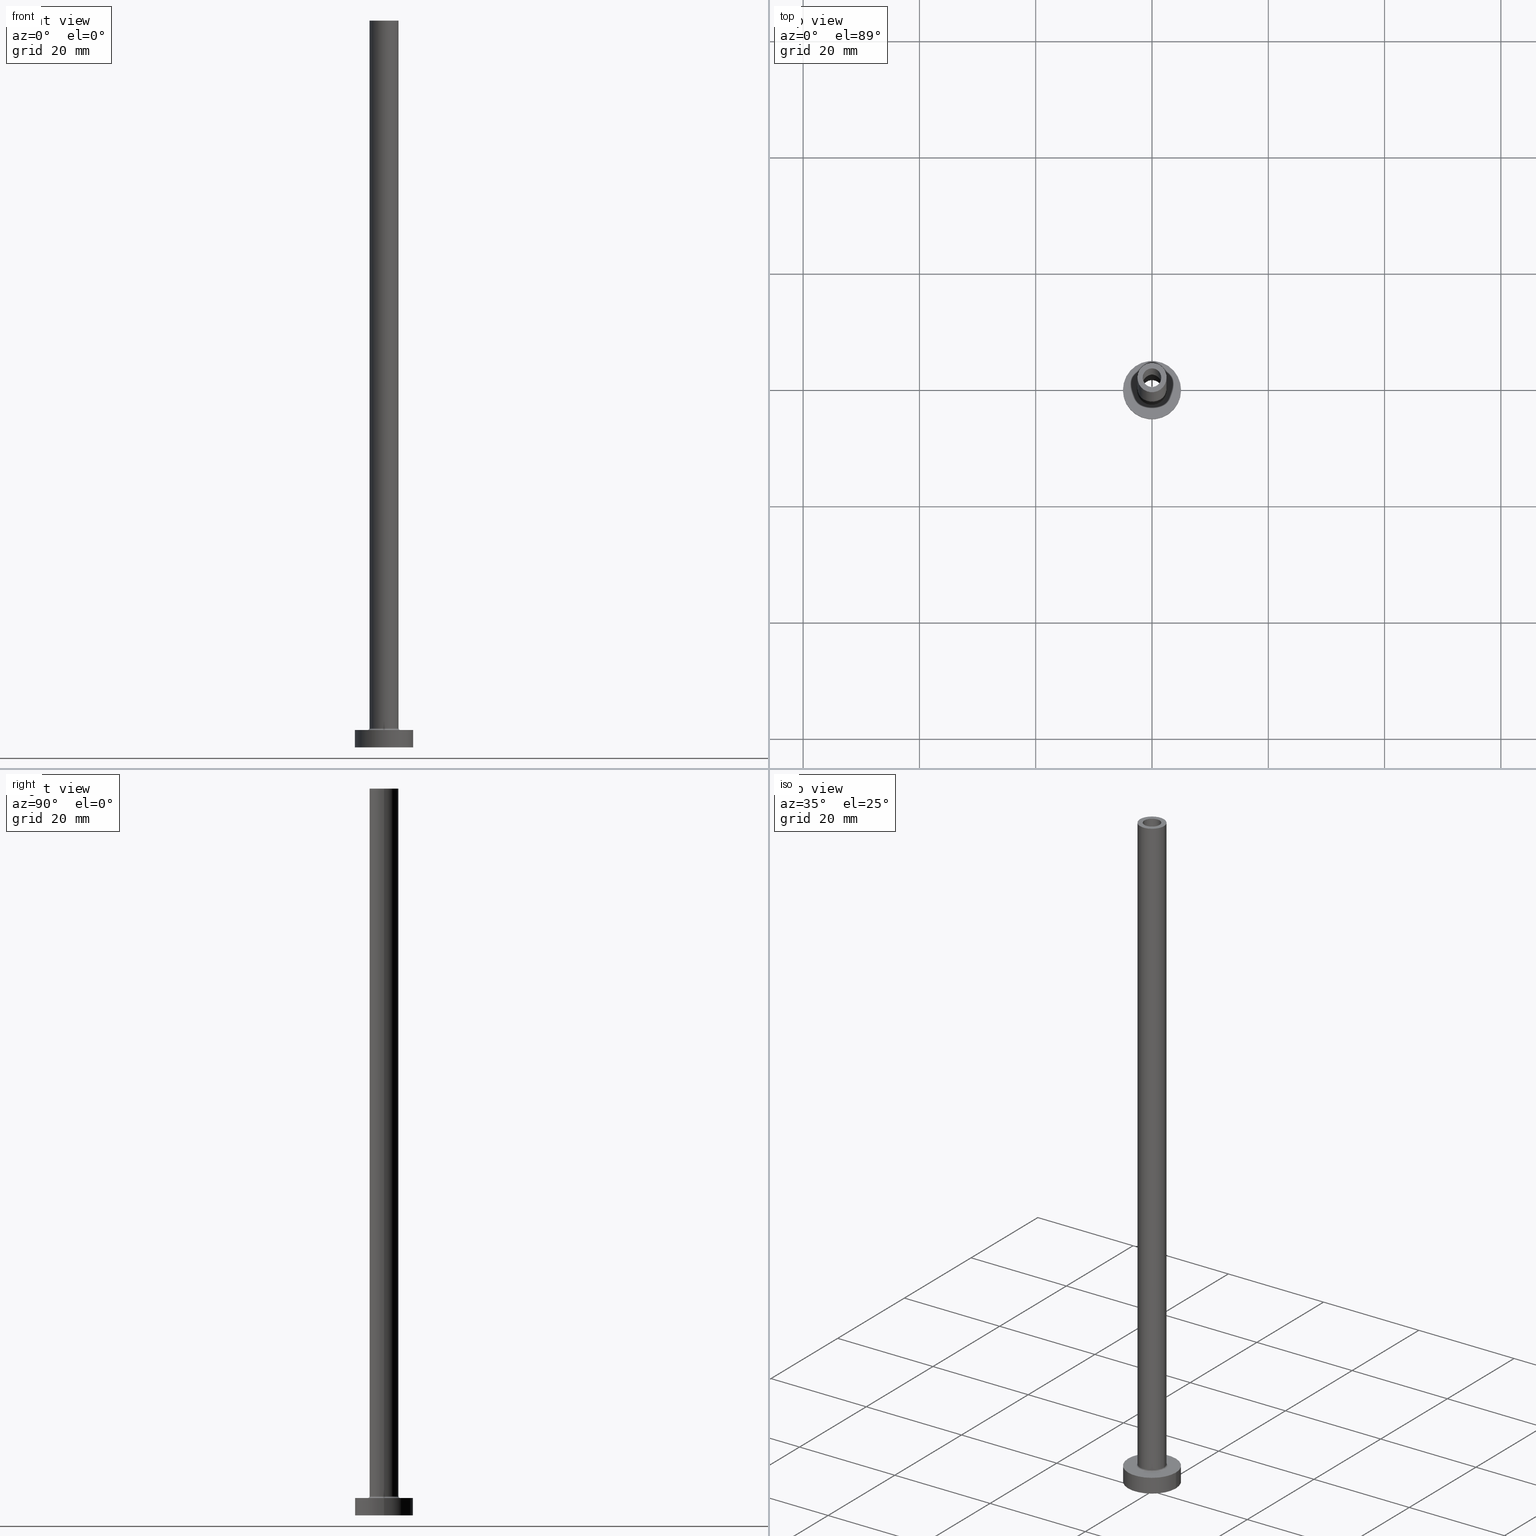
[diagram: canonical four-view strip — front | top / right | iso, engineering-drawing reading convention]
A machine part, canonical four-view strip (front | top / right | iso — engineering-drawing reading convention). The complete STEP part file that produces these views, byte-faithful:
ISO-10303-21;
HEADER;
FILE_DESCRIPTION (( 'STEP AP203' ),
    '1' );
FILE_NAME ('bd1d.STEP',
    '2023-02-13T12:03:05',
    ( '' ),
    ( '' ),
    'SwSTEP 2.0',
    'SolidWorks 2019',
    '' );
FILE_SCHEMA (( 'CONFIG_CONTROL_DESIGN' ));
ENDSEC;

DATA;
#1 = DIRECTION ( 'NONE',  ( -0.000000000000000000, -0.000000000000000000, -1.000000000000000000 ) ) ;
#2 = LINE ( 'NONE', #147, #232 ) ;
#3 = ORIENTED_EDGE ( 'NONE', *, *, #40, .T. ) ;
#4 = CARTESIAN_POINT ( 'NONE',  ( 1.750000000000000000, 2.143131898507868297E-16, 80.00000000000000000 ) ) ;
#5 = FACE_BOUND ( 'NONE', #326, .T. ) ;
#6 = AXIS2_PLACEMENT_3D ( 'NONE', #183, #56, #448 ) ;
#7 = VERTEX_POINT ( 'NONE', #112 ) ;
#8 = AXIS2_PLACEMENT_3D ( 'NONE', #420, #246, #314 ) ;
#9 = ADVANCED_FACE ( 'NONE', ( #5, #266 ), #74, .F. ) ;
#10 = DIRECTION ( 'NONE',  ( 0.000000000000000000, 0.000000000000000000, -1.000000000000000000 ) ) ;
#11 = CIRCLE ( 'NONE', #66, 1.600000000000000089 ) ;
#12 = ORIENTED_EDGE ( 'NONE', *, *, #135, .T. ) ;
#13 = EDGE_LOOP ( 'NONE', ( #405, #444, #121, #395 ) ) ;
#14 = DIRECTION ( 'NONE',  ( 1.000000000000000000, 0.000000000000000000, 0.000000000000000000 ) ) ;
#15 = CARTESIAN_POINT ( 'NONE',  ( 5.000000000000000000, 6.123233995736766282E-16, 0.000000000000000000 ) ) ;
#16 = DIRECTION ( 'NONE',  ( 1.000000000000000000, 0.000000000000000000, 0.000000000000000000 ) ) ;
#17 = PRODUCT_RELATED_PRODUCT_CATEGORY ( 'detail', '', ( #384 ) ) ;
#18 = APPLICATION_PROTOCOL_DEFINITION ( 'international standard', 'config_control_design', 1994, #327 ) ;
#19 = DIRECTION ( 'NONE',  ( -0.000000000000000000, -0.000000000000000000, -1.000000000000000000 ) ) ;
#20 = VERTEX_POINT ( 'NONE', #15 ) ;
#21 = DIRECTION ( 'NONE',  ( 0.000000000000000000, 0.000000000000000000, -1.000000000000000000 ) ) ;
#22 = AXIS2_PLACEMENT_3D ( 'NONE', #52, #385, #130 ) ;
#23 = DIRECTION ( 'NONE',  ( 0.000000000000000000, 0.000000000000000000, 1.000000000000000000 ) ) ;
#24 = PERSON_AND_ORGANIZATION ( #297, #64 ) ;
#25 = EDGE_CURVE ( 'NONE', #437, #100, #225, .T. ) ;
#26 = DIRECTION ( 'NONE',  ( 0.000000000000000000, 0.000000000000000000, 1.000000000000000000 ) ) ;
#27 = ORIENTED_EDGE ( 'NONE', *, *, #273, .T. ) ;
#28 = DIRECTION ( 'NONE',  ( 0.000000000000000000, 0.000000000000000000, 1.000000000000000000 ) ) ;
#29 = ORIENTED_EDGE ( 'NONE', *, *, #374, .F. ) ;
#30 = AXIS2_PLACEMENT_3D ( 'NONE', #450, #129, #88 ) ;
#31 = CYLINDRICAL_SURFACE ( 'NONE', #132, 1.600000000000000089 ) ;
#32 = VERTEX_POINT ( 'NONE', #281 ) ;
#33 = VECTOR ( 'NONE', #36, 1000.000000000000000 ) ;
#34 = FACE_OUTER_BOUND ( 'NONE', #51, .T. ) ;
#35 = ORIENTED_EDGE ( 'NONE', *, *, #293, .T. ) ;
#36 = DIRECTION ( 'NONE',  ( 0.000000000000000000, 0.000000000000000000, -1.000000000000000000 ) ) ;
#37 = AXIS2_PLACEMENT_3D ( 'NONE', #263, #186, #340 ) ;
#38 = PERSON_AND_ORGANIZATION_ROLE ( 'creator' ) ;
#39 = DIRECTION ( 'NONE',  ( 1.000000000000000000, 0.000000000000000000, 0.000000000000000000 ) ) ;
#40 = EDGE_CURVE ( 'NONE', #133, #7, #241, .T. ) ;
#41 = VERTEX_POINT ( 'NONE', #126 ) ;
#42 = APPROVAL_DATE_TIME ( #255, #96 ) ;
#43 = DIRECTION ( 'NONE',  ( 1.000000000000000000, 0.000000000000000000, 0.000000000000000000 ) ) ;
#44 = EDGE_LOOP ( 'NONE', ( #310, #274 ) ) ;
#45 = DIRECTION ( 'NONE',  ( 1.000000000000000000, 0.000000000000000000, -0.000000000000000000 ) ) ;
#46 = ORIENTED_EDGE ( 'NONE', *, *, #193, .T. ) ;
#47 = ADVANCED_FACE ( 'NONE', ( #131 ), #240, .T. ) ;
#48 = PLANE ( 'NONE',  #272 ) ;
#49 = CIRCLE ( 'NONE', #380, 0.2999999999999999334 ) ;
#50 = ORIENTED_EDGE ( 'NONE', *, *, #193, .F. ) ;
#51 = EDGE_LOOP ( 'NONE', ( #337, #46, #82, #441 ) ) ;
#52 = CARTESIAN_POINT ( 'NONE',  ( 0.000000000000000000, 0.000000000000000000, 0.000000000000000000 ) ) ;
#53 = EDGE_CURVE ( 'NONE', #100, #437, #243, .T. ) ;
#54 = CARTESIAN_POINT ( 'NONE',  ( -5.000000000000000000, 0.000000000000000000, 3.000000000000000000 ) ) ;
#55 = SECURITY_CLASSIFICATION ( '', '', #224 ) ;
#56 = DIRECTION ( 'NONE',  ( 0.000000000000000000, 0.000000000000000000, 1.000000000000000000 ) ) ;
#57 = CYLINDRICAL_SURFACE ( 'NONE', #8, 2.500000000000000000 ) ;
#58 = AXIS2_PLACEMENT_3D ( 'NONE', #162, #23, #288 ) ;
#59 = CARTESIAN_POINT ( 'NONE',  ( 0.000000000000000000, 0.000000000000000000, 125.0000000000000000 ) ) ;
#60 = DIRECTION ( 'NONE',  ( 1.000000000000000000, 0.000000000000000000, 0.000000000000000000 ) ) ;
#61 = ORIENTED_EDGE ( 'NONE', *, *, #89, .F. ) ;
#62 = CARTESIAN_POINT ( 'NONE',  ( 1.600000000000000089, 1.959434878635764737E-16, 125.0000000000000000 ) ) ;
#63 = ADVANCED_FACE ( 'NONE', ( #449, #196 ), #208, .T. ) ;
#64 = ORGANIZATION ( 'NEUR�EN�', 'NEUR�EN�', '' ) ;
#65 = DIRECTION ( 'NONE',  ( 0.000000000000000000, 0.000000000000000000, -1.000000000000000000 ) ) ;
#66 = AXIS2_PLACEMENT_3D ( 'NONE', #210, #460, #139 ) ;
#67 = CARTESIAN_POINT ( 'NONE',  ( 0.000000000000000000, 0.000000000000000000, 125.0000000000000000 ) ) ;
#68 = ORIENTED_EDGE ( 'NONE', *, *, #458, .F. ) ;
#69 = APPROVAL_STATUS ( 'not_yet_approved' ) ;
#70 = CC_DESIGN_PERSON_AND_ORGANIZATION_ASSIGNMENT ( #461, #38, ( #169 ) ) ;
#71 = CARTESIAN_POINT ( 'NONE',  ( 1.750000000000000000, 2.143131898507868297E-16, 0.000000000000000000 ) ) ;
#72 = CALENDAR_DATE ( 2023, 13, 2 ) ;
#73 = CYLINDRICAL_SURFACE ( 'NONE', #249, 5.000000000000000000 ) ;
#74 = PLANE ( 'NONE',  #115 ) ;
#75 = DIRECTION ( 'NONE',  ( -0.000000000000000000, -0.000000000000000000, -1.000000000000000000 ) ) ;
#76 = ADVANCED_FACE ( 'NONE', ( #352, #355 ), #278, .F. ) ;
#77 = ORIENTED_EDGE ( 'NONE', *, *, #25, .T. ) ;
#78 = FACE_OUTER_BOUND ( 'NONE', #408, .T. ) ;
#79 = ORIENTED_EDGE ( 'NONE', *, *, #458, .T. ) ;
#80 = AXIS2_PLACEMENT_3D ( 'NONE', #370, #75, #436 ) ;
#81 = MANIFOLD_SOLID_BREP ( 'Odebrat vysunut�m4', #237 ) ;
#82 = ORIENTED_EDGE ( 'NONE', *, *, #199, .T. ) ;
#83 = DIRECTION ( 'NONE',  ( 0.000000000000000000, 0.000000000000000000, 1.000000000000000000 ) ) ;
#84 = FACE_OUTER_BOUND ( 'NONE', #106, .T. ) ;
#85 = CIRCLE ( 'NONE', #214, 2.799999999999999822 ) ;
#86 = CARTESIAN_POINT ( 'NONE',  ( -2.500000000000000000, 0.000000000000000000, 3.299999999999997158 ) ) ;
#87 = DIRECTION ( 'NONE',  ( 0.000000000000000000, 0.000000000000000000, 1.000000000000000000 ) ) ;
#88 = DIRECTION ( 'NONE',  ( -1.000000000000000000, 0.000000000000000000, 0.000000000000000000 ) ) ;
#89 = EDGE_CURVE ( 'NONE', #32, #307, #98, .T. ) ;
#90 = DATE_AND_TIME ( #313, #142 ) ;
#91 = CARTESIAN_POINT ( 'NONE',  ( -5.000000000000000000, 0.000000000000000000, 3.000000000000000000 ) ) ;
#92 = ORIENTED_EDGE ( 'NONE', *, *, #443, .T. ) ;
#93 = APPROVAL_PERSON_ORGANIZATION ( #419, #330, #382 ) ;
#94 = COORDINATED_UNIVERSAL_TIME_OFFSET ( 1, 0, .AHEAD. ) ;
#95 = CARTESIAN_POINT ( 'NONE',  ( 0.000000000000000000, 0.000000000000000000, 0.000000000000000000 ) ) ;
#96 = APPROVAL ( #372, 'NEUR�EN�' ) ;
#97 = PERSON_AND_ORGANIZATION_ROLE ( 'classification_officer' ) ;
#98 = CIRCLE ( 'NONE', #277, 2.500000000000000000 ) ;
#99 = DIRECTION ( 'NONE',  ( 1.000000000000000000, 0.000000000000000000, 0.000000000000000000 ) ) ;
#100 = VERTEX_POINT ( 'NONE', #170 ) ;
#101 = TOROIDAL_SURFACE ( 'NONE', #189, 2.799999999999999822, 0.2999999999999999889 ) ;
#102 = CARTESIAN_POINT ( 'NONE',  ( 0.000000000000000000, 0.000000000000000000, 3.299999999999997158 ) ) ;
#103 = ORIENTED_EDGE ( 'NONE', *, *, #175, .T. ) ;
#104 = CARTESIAN_POINT ( 'NONE',  ( 2.799999999999999822, 0.000000000000000000, 2.999999999999998668 ) ) ;
#105 = AXIS2_PLACEMENT_3D ( 'NONE', #386, #417, #283 ) ;
#106 = EDGE_LOOP ( 'NONE', ( #276, #61, #445, #156 ) ) ;
#107 = ADVANCED_FACE ( 'NONE', ( #84 ), #57, .T. ) ;
#108 = DATE_TIME_ROLE ( 'creation_date' ) ;
#109 = CARTESIAN_POINT ( 'NONE',  ( 0.000000000000000000, 0.000000000000000000, 125.0000000000000000 ) ) ;
#110 = LINE ( 'NONE', #404, #230 ) ;
#111 =( GEOMETRIC_REPRESENTATION_CONTEXT ( 3 ) GLOBAL_UNCERTAINTY_ASSIGNED_CONTEXT ( ( #429 ) ) GLOBAL_UNIT_ASSIGNED_CONTEXT ( ( #312, #125, #349 ) ) REPRESENTATION_CONTEXT ( 'NONE', 'WORKASPACE' ) );
#112 = CARTESIAN_POINT ( 'NONE',  ( -5.000000000000000000, 0.000000000000000000, 0.000000000000000000 ) ) ;
#113 = EDGE_CURVE ( 'NONE', #307, #371, #316, .T. ) ;
#114 = CARTESIAN_POINT ( 'NONE',  ( 0.000000000000000000, 0.000000000000000000, 84.94974746830584422 ) ) ;
#115 = AXIS2_PLACEMENT_3D ( 'NONE', #238, #379, #344 ) ;
#116 = VERTEX_POINT ( 'NONE', #86 ) ;
#117 = ORIENTED_EDGE ( 'NONE', *, *, #113, .T. ) ;
#118 = CARTESIAN_POINT ( 'NONE',  ( 0.000000000000000000, 0.000000000000000000, 3.000000000000000000 ) ) ;
#119 = ORIENTED_EDGE ( 'NONE', *, *, #347, .T. ) ;
#120 = CIRCLE ( 'NONE', #345, 1.750000000000000000 ) ;
#121 = ORIENTED_EDGE ( 'NONE', *, *, #25, .F. ) ;
#122 = AXIS2_PLACEMENT_3D ( 'NONE', #248, #21, #168 ) ;
#123 = ADVANCED_FACE ( 'NONE', ( #319 ), #242, .F. ) ;
#124 = DIRECTION ( 'NONE',  ( 0.000000000000000000, 0.000000000000000000, 1.000000000000000000 ) ) ;
#125 =( NAMED_UNIT ( * ) PLANE_ANGLE_UNIT ( ) SI_UNIT ( $, .RADIAN. ) );
#126 = CARTESIAN_POINT ( 'NONE',  ( -1.750000000000000000, 0.000000000000000000, 0.000000000000000000 ) ) ;
#127 = CC_DESIGN_APPROVAL ( #96, ( #55 ) ) ;
#128 = ADVANCED_FACE ( 'NONE', ( #318 ), #171, .F. ) ;
#129 = DIRECTION ( 'NONE',  ( -0.000000000000000000, -0.000000000000000000, -1.000000000000000000 ) ) ;
#130 = DIRECTION ( 'NONE',  ( 1.000000000000000000, 0.000000000000000000, 0.000000000000000000 ) ) ;
#131 = FACE_OUTER_BOUND ( 'NONE', #247, .T. ) ;
#132 = AXIS2_PLACEMENT_3D ( 'NONE', #256, #65, #182 ) ;
#133 = VERTEX_POINT ( 'NONE', #91 ) ;
#134 = LINE ( 'NONE', #217, #33 ) ;
#135 = EDGE_CURVE ( 'NONE', #358, #437, #291, .T. ) ;
#136 = AXIS2_PLACEMENT_3D ( 'NONE', #346, #87, #14 ) ;
#137 = DATE_AND_TIME ( #72, #398 ) ;
#138 = CARTESIAN_POINT ( 'NONE',  ( 0.000000000000000000, 0.000000000000000000, 3.299999999999997158 ) ) ;
#139 = DIRECTION ( 'NONE',  ( 1.000000000000000000, 0.000000000000000000, 0.000000000000000000 ) ) ;
#140 = CARTESIAN_POINT ( 'NONE',  ( -1.750000000000000000, 0.000000000000000000, 84.94974746830584422 ) ) ;
#141 = EDGE_LOOP ( 'NONE', ( #163, #304, #27, #119 ) ) ;
#142 = LOCAL_TIME ( 13, 3, 5.000000000000000000, #416 ) ;
#143 = DIRECTION ( 'NONE',  ( 1.000000000000000000, 0.000000000000000000, 0.000000000000000000 ) ) ;
#144 = APPROVAL ( #69, 'NEUR�EN�' ) ;
#145 = ORIENTED_EDGE ( 'NONE', *, *, #374, .T. ) ;
#146 = PERSON_AND_ORGANIZATION ( #297, #64 ) ;
#147 = CARTESIAN_POINT ( 'NONE',  ( 1.750000000000000000, 2.143131898507868297E-16, 84.94974746830584422 ) ) ;
#148 = AXIS2_PLACEMENT_3D ( 'NONE', #67, #26, #294 ) ;
#149 = EDGE_LOOP ( 'NONE', ( #269, #92 ) ) ;
#150 = ADVANCED_FACE ( 'NONE', ( #427 ), #31, .F. ) ;
#151 = AXIS2_PLACEMENT_3D ( 'NONE', #373, #402, #268 ) ;
#152 = DIRECTION ( 'NONE',  ( 0.000000000000000000, 0.000000000000000000, -1.000000000000000000 ) ) ;
#153 = CIRCLE ( 'NONE', #37, 2.799999999999999822 ) ;
#154 = DIRECTION ( 'NONE',  ( 0.000000000000000000, 0.000000000000000000, 1.000000000000000000 ) ) ;
#155 = DIRECTION ( 'NONE',  ( -0.000000000000000000, -0.000000000000000000, -1.000000000000000000 ) ) ;
#156 = ORIENTED_EDGE ( 'NONE', *, *, #435, .T. ) ;
#157 = VECTOR ( 'NONE', #260, 1000.000000000000000 ) ;
#158 = DIRECTION ( 'NONE',  ( 0.000000000000000000, 0.000000000000000000, 1.000000000000000000 ) ) ;
#159 = ORIENTED_EDGE ( 'NONE', *, *, #305, .T. ) ;
#160 = EDGE_LOOP ( 'NONE', ( #68, #211 ) ) ;
#161 = AXIS2_PLACEMENT_3D ( 'NONE', #410, #388, #203 ) ;
#162 = CARTESIAN_POINT ( 'NONE',  ( 0.000000000000000000, 0.000000000000000000, 3.000000000000000000 ) ) ;
#163 = ORIENTED_EDGE ( 'NONE', *, *, #387, .F. ) ;
#164 = VECTOR ( 'NONE', #19, 1000.000000000000000 ) ;
#165 = APPROVAL_STATUS ( 'not_yet_approved' ) ;
#166 = PRODUCT_DEFINITION_SHAPE ( 'NONE', 'NONE',  #409 ) ;
#167 = EDGE_CURVE ( 'NONE', #371, #116, #227, .T. ) ;
#168 = DIRECTION ( 'NONE',  ( -1.000000000000000000, 0.000000000000000000, 0.000000000000000000 ) ) ;
#169 = PRODUCT_DEFINITION_FORMATION_WITH_SPECIFIED_SOURCE ( 'LIBOVOLN�', '', #384, .NOT_KNOWN. ) ;
#170 = CARTESIAN_POINT ( 'NONE',  ( 1.600000000000000089, 1.959434878635764737E-16, 80.00000000000000000 ) ) ;
#171 = TOROIDAL_SURFACE ( 'NONE', #431, 2.799999999999999822, 0.2999999999999999889 ) ;
#172 = SHAPE_DEFINITION_REPRESENTATION ( #166, #204 ) ;
#173 = CARTESIAN_POINT ( 'NONE',  ( 0.000000000000000000, 0.000000000000000000, 80.00000000000000000 ) ) ;
#174 = CARTESIAN_POINT ( 'NONE',  ( -1.750000000000000000, 0.000000000000000000, 80.00000000000000000 ) ) ;
#175 = EDGE_CURVE ( 'NONE', #7, #20, #201, .T. ) ;
#176 = DIRECTION ( 'NONE',  ( -0.000000000000000000, -0.000000000000000000, -1.000000000000000000 ) ) ;
#177 = DIRECTION ( 'NONE',  ( 0.000000000000000000, 0.000000000000000000, 1.000000000000000000 ) ) ;
#178 = VERTEX_POINT ( 'NONE', #62 ) ;
#179 = VECTOR ( 'NONE', #452, 1000.000000000000000 ) ;
#180 = CARTESIAN_POINT ( 'NONE',  ( 0.000000000000000000, 0.000000000000000000, 3.000000000000000000 ) ) ;
#181 = LOCAL_TIME ( 13, 3, 5.000000000000000000, #94 ) ;
#182 = DIRECTION ( 'NONE',  ( -1.000000000000000000, 0.000000000000000000, 0.000000000000000000 ) ) ;
#183 = CARTESIAN_POINT ( 'NONE',  ( 0.000000000000000000, 0.000000000000000000, 3.299999999999997158 ) ) ;
#184 = CC_DESIGN_PERSON_AND_ORGANIZATION_ASSIGNMENT ( #399, #97, ( #55 ) ) ;
#185 = ORIENTED_EDGE ( 'NONE', *, *, #53, .T. ) ;
#186 = DIRECTION ( 'NONE',  ( -0.000000000000000000, -0.000000000000000000, -1.000000000000000000 ) ) ;
#187 = VERTEX_POINT ( 'NONE', #363 ) ;
#188 = CARTESIAN_POINT ( 'NONE',  ( 0.000000000000000000, 0.000000000000000000, 80.00000000000000000 ) ) ;
#189 = AXIS2_PLACEMENT_3D ( 'NONE', #191, #158, #308 ) ;
#190 = ORIENTED_EDGE ( 'NONE', *, *, #167, .F. ) ;
#191 = CARTESIAN_POINT ( 'NONE',  ( 0.000000000000000000, 0.000000000000000000, 3.299999999999997158 ) ) ;
#192 = ORIENTED_EDGE ( 'NONE', *, *, #167, .T. ) ;
#193 = EDGE_CURVE ( 'NONE', #187, #20, #424, .T. ) ;
#194 = ORIENTED_EDGE ( 'NONE', *, *, #338, .T. ) ;
#195 = DIRECTION ( 'NONE',  ( 1.000000000000000000, 0.000000000000000000, 0.000000000000000000 ) ) ;
#196 = FACE_OUTER_BOUND ( 'NONE', #439, .T. ) ;
#197 = CIRCLE ( 'NONE', #6, 2.500000000000000000 ) ;
#198 = DIRECTION ( 'NONE',  ( -0.000000000000000000, -0.000000000000000000, -1.000000000000000000 ) ) ;
#199 = EDGE_CURVE ( 'NONE', #20, #7, #270, .T. ) ;
#200 = EDGE_LOOP ( 'NONE', ( #440, #35, #12, #251 ) ) ;
#201 = CIRCLE ( 'NONE', #457, 5.000000000000000000 ) ;
#202 = EDGE_LOOP ( 'NONE', ( #341, #244 ) ) ;
#203 = DIRECTION ( 'NONE',  ( 1.000000000000000000, 0.000000000000000000, 0.000000000000000000 ) ) ;
#204 = ADVANCED_BREP_SHAPE_REPRESENTATION ( 'bd1d', ( #81, #22 ), #111 ) ;
#205 = APPLICATION_CONTEXT ( 'configuration controlled 3d designs of mechanical parts and assemblies' ) ;
#206 = LOCAL_TIME ( 13, 3, 5.000000000000000000, #335 ) ;
#207 = DATE_AND_TIME ( #320, #339 ) ;
#208 = PLANE ( 'NONE',  #58 ) ;
#209 = ADVANCED_FACE ( 'NONE', ( #34 ), #368, .T. ) ;
#210 = CARTESIAN_POINT ( 'NONE',  ( 0.000000000000000000, 0.000000000000000000, 125.0000000000000000 ) ) ;
#211 = ORIENTED_EDGE ( 'NONE', *, *, #353, .F. ) ;
#212 = DATE_TIME_ROLE ( 'classification_date' ) ;
#213 = ORIENTED_EDGE ( 'NONE', *, *, #387, .T. ) ;
#214 = AXIS2_PLACEMENT_3D ( 'NONE', #280, #198, #195 ) ;
#215 = CARTESIAN_POINT ( 'NONE',  ( -1.600000000000000089, 0.000000000000000000, 125.0000000000000000 ) ) ;
#216 = EDGE_CURVE ( 'NONE', #358, #178, #359, .T. ) ;
#217 = CARTESIAN_POINT ( 'NONE',  ( 1.600000000000000089, 1.959434878635764737E-16, 125.0000000000000000 ) ) ;
#218 = DIRECTION ( 'NONE',  ( 1.000000000000000000, 0.000000000000000000, 0.000000000000000000 ) ) ;
#219 = EDGE_LOOP ( 'NONE', ( #79, #213, #145, #400 ) ) ;
#220 = COORDINATED_UNIVERSAL_TIME_OFFSET ( 1, 0, .AHEAD. ) ;
#221 = EDGE_CURVE ( 'NONE', #178, #100, #134, .T. ) ;
#222 = DIRECTION ( 'NONE',  ( 0.000000000000000000, 0.000000000000000000, 1.000000000000000000 ) ) ;
#223 = EDGE_LOOP ( 'NONE', ( #366, #190, #159, #334 ) ) ;
#224 = SECURITY_CLASSIFICATION_LEVEL ( 'unclassified' ) ;
#225 = CIRCLE ( 'NONE', #401, 1.600000000000000089 ) ;
#226 = VERTEX_POINT ( 'NONE', #298 ) ;
#227 = CIRCLE ( 'NONE', #295, 2.500000000000000000 ) ;
#228 = DIRECTION ( 'NONE',  ( 0.000000000000000000, 0.000000000000000000, -1.000000000000000000 ) ) ;
#229 = VERTEX_POINT ( 'NONE', #104 ) ;
#230 = VECTOR ( 'NONE', #155, 1000.000000000000000 ) ;
#231 = CARTESIAN_POINT ( 'NONE',  ( 0.000000000000000000, 0.000000000000000000, 0.000000000000000000 ) ) ;
#232 = VECTOR ( 'NONE', #10, 1000.000000000000000 ) ;
#233 = EDGE_LOOP ( 'NONE', ( #77, #185 ) ) ;
#234 = CC_DESIGN_PERSON_AND_ORGANIZATION_ASSIGNMENT ( #24, #267, ( #409 ) ) ;
#235 = FACE_BOUND ( 'NONE', #292, .T. ) ;
#236 = AXIS2_PLACEMENT_3D ( 'NONE', #173, #83, #389 ) ;
#237 = CLOSED_SHELL ( 'NONE', ( #150, #123, #423, #47, #209, #322, #63, #9, #107, #311, #128, #414, #76, #289 ) ) ;
#238 = CARTESIAN_POINT ( 'NONE',  ( 0.000000000000000000, 0.000000000000000000, 0.000000000000000000 ) ) ;
#239 = PERSON_AND_ORGANIZATION_ROLE ( 'design_owner' ) ;
#240 = CYLINDRICAL_SURFACE ( 'NONE', #30, 2.500000000000000000 ) ;
#241 = LINE ( 'NONE', #54, #430 ) ;
#242 = CYLINDRICAL_SURFACE ( 'NONE', #122, 1.750000000000000000 ) ;
#243 = CIRCLE ( 'NONE', #236, 1.600000000000000089 ) ;
#244 = ORIENTED_EDGE ( 'NONE', *, *, #447, .T. ) ;
#245 = AXIS2_PLACEMENT_3D ( 'NONE', #393, #176, #323 ) ;
#246 = DIRECTION ( 'NONE',  ( -0.000000000000000000, -0.000000000000000000, -1.000000000000000000 ) ) ;
#247 = EDGE_LOOP ( 'NONE', ( #331, #117, #192, #362 ) ) ;
#248 = CARTESIAN_POINT ( 'NONE',  ( 0.000000000000000000, 0.000000000000000000, 84.94974746830584422 ) ) ;
#249 = AXIS2_PLACEMENT_3D ( 'NONE', #118, #1, #433 ) ;
#250 = CIRCLE ( 'NONE', #80, 1.750000000000000000 ) ;
#251 = ORIENTED_EDGE ( 'NONE', *, *, #53, .F. ) ;
#252 = CC_DESIGN_DATE_AND_TIME_ASSIGNMENT ( #332, #108, ( #409 ) ) ;
#253 = PERSON_AND_ORGANIZATION ( #297, #64 ) ;
#254 = DIRECTION ( 'NONE',  ( 0.000000000000000000, 0.000000000000000000, 1.000000000000000000 ) ) ;
#255 = DATE_AND_TIME ( #299, #181 ) ;
#256 = CARTESIAN_POINT ( 'NONE',  ( 0.000000000000000000, 0.000000000000000000, 125.0000000000000000 ) ) ;
#257 = DIRECTION ( 'NONE',  ( 0.000000000000000000, -1.000000000000000000, 0.000000000000000000 ) ) ;
#258 = EDGE_CURVE ( 'NONE', #187, #133, #262, .T. ) ;
#259 = CC_DESIGN_SECURITY_CLASSIFICATION ( #55, ( #169 ) ) ;
#260 = DIRECTION ( 'NONE',  ( 0.000000000000000000, 0.000000000000000000, -1.000000000000000000 ) ) ;
#261 = DIRECTION ( 'NONE',  ( 1.000000000000000000, 0.000000000000000000, 0.000000000000000000 ) ) ;
#262 = CIRCLE ( 'NONE', #418, 5.000000000000000000 ) ;
#263 = CARTESIAN_POINT ( 'NONE',  ( 0.000000000000000000, 0.000000000000000000, 3.000000000000000000 ) ) ;
#264 = ORIENTED_EDGE ( 'NONE', *, *, #428, .F. ) ;
#265 = APPROVAL_PERSON_ORGANIZATION ( #146, #96, #438 ) ;
#266 = FACE_OUTER_BOUND ( 'NONE', #44, .T. ) ;
#267 = PERSON_AND_ORGANIZATION_ROLE ( 'creator' ) ;
#268 = DIRECTION ( 'NONE',  ( -1.000000000000000000, 1.224646799147353207E-16, 0.000000000000000000 ) ) ;
#269 = ORIENTED_EDGE ( 'NONE', *, *, #361, .T. ) ;
#270 = CIRCLE ( 'NONE', #446, 5.000000000000000000 ) ;
#271 = FACE_OUTER_BOUND ( 'NONE', #412, .T. ) ;
#272 = AXIS2_PLACEMENT_3D ( 'NONE', #109, #376, #45 ) ;
#273 = EDGE_CURVE ( 'NONE', #301, #41, #426, .T. ) ;
#274 = ORIENTED_EDGE ( 'NONE', *, *, #199, .F. ) ;
#275 = CYLINDRICAL_SURFACE ( 'NONE', #290, 1.750000000000000000 ) ;
#276 = ORIENTED_EDGE ( 'NONE', *, *, #113, .F. ) ;
#277 = AXIS2_PLACEMENT_3D ( 'NONE', #59, #124, #415 ) ;
#278 = PLANE ( 'NONE',  #105 ) ;
#279 = CC_DESIGN_PERSON_AND_ORGANIZATION_ASSIGNMENT ( #285, #239, ( #384 ) ) ;
#280 = CARTESIAN_POINT ( 'NONE',  ( 0.000000000000000000, 0.000000000000000000, 3.000000000000000000 ) ) ;
#281 = CARTESIAN_POINT ( 'NONE',  ( -2.500000000000000000, 0.000000000000000000, 125.0000000000000000 ) ) ;
#282 = APPROVAL_DATE_TIME ( #90, #330 ) ;
#283 = DIRECTION ( 'NONE',  ( 1.000000000000000000, 0.000000000000000000, -0.000000000000000000 ) ) ;
#284 = CIRCLE ( 'NONE', #136, 2.500000000000000000 ) ;
#285 = PERSON_AND_ORGANIZATION ( #297, #64 ) ;
#286 = APPLICATION_PROTOCOL_DEFINITION ( 'international standard', 'config_control_design', 1994, #205 ) ;
#287 = AXIS2_PLACEMENT_3D ( 'NONE', #296, #456, #325 ) ;
#288 = DIRECTION ( 'NONE',  ( 1.000000000000000000, 0.000000000000000000, -0.000000000000000000 ) ) ;
#289 = ADVANCED_FACE ( 'NONE', ( #421 ), #360, .F. ) ;
#290 = AXIS2_PLACEMENT_3D ( 'NONE', #114, #152, #303 ) ;
#291 = LINE ( 'NONE', #215, #157 ) ;
#292 = EDGE_LOOP ( 'NONE', ( #425, #356 ) ) ;
#293 = EDGE_CURVE ( 'NONE', #178, #358, #11, .T. ) ;
#294 = DIRECTION ( 'NONE',  ( 1.000000000000000000, 0.000000000000000000, 0.000000000000000000 ) ) ;
#295 = AXIS2_PLACEMENT_3D ( 'NONE', #102, #254, #218 ) ;
#296 = CARTESIAN_POINT ( 'NONE',  ( 0.000000000000000000, 0.000000000000000000, 125.0000000000000000 ) ) ;
#297 = PERSON ( 'NEUR�EN�', 'NEUR�EN�', 'NEUR�EN�', ('NEUR�EN�'), ('NEUR�EN�'), ('NEUR�EN�') ) ;
#298 = CARTESIAN_POINT ( 'NONE',  ( -2.799999999999999822, 3.429011037612589276E-16, 2.999999999999998668 ) ) ;
#299 = CALENDAR_DATE ( 2023, 13, 2 ) ;
#300 = FACE_OUTER_BOUND ( 'NONE', #141, .T. ) ;
#301 = VERTEX_POINT ( 'NONE', #174 ) ;
#302 = APPROVAL_ROLE ( '' ) ;
#303 = DIRECTION ( 'NONE',  ( -1.000000000000000000, 0.000000000000000000, 0.000000000000000000 ) ) ;
#304 = ORIENTED_EDGE ( 'NONE', *, *, #353, .T. ) ;
#305 = EDGE_CURVE ( 'NONE', #371, #229, #49, .T. ) ;
#306 = CARTESIAN_POINT ( 'NONE',  ( 2.500000000000000000, 3.061616997868382648E-16, 125.0000000000000000 ) ) ;
#307 = VERTEX_POINT ( 'NONE', #306 ) ;
#308 = DIRECTION ( 'NONE',  ( 1.000000000000000000, 0.000000000000000000, 0.000000000000000000 ) ) ;
#309 = CARTESIAN_POINT ( 'NONE',  ( -1.600000000000000089, 0.000000000000000000, 80.00000000000000000 ) ) ;
#310 = ORIENTED_EDGE ( 'NONE', *, *, #175, .F. ) ;
#311 = ADVANCED_FACE ( 'NONE', ( #235, #333 ), #48, .T. ) ;
#312 =( LENGTH_UNIT ( ) NAMED_UNIT ( * ) SI_UNIT ( .MILLI., .METRE. ) );
#313 = CALENDAR_DATE ( 2023, 13, 2 ) ;
#314 = DIRECTION ( 'NONE',  ( -1.000000000000000000, 0.000000000000000000, 0.000000000000000000 ) ) ;
#315 = MECHANICAL_CONTEXT ( 'NONE', #205, 'mechanical' ) ;
#316 = LINE ( 'NONE', #350, #164 ) ;
#317 = ORIENTED_EDGE ( 'NONE', *, *, #428, .T. ) ;
#318 = FACE_OUTER_BOUND ( 'NONE', #223, .T. ) ;
#319 = FACE_OUTER_BOUND ( 'NONE', #219, .T. ) ;
#320 = CALENDAR_DATE ( 2023, 13, 2 ) ;
#321 = CARTESIAN_POINT ( 'NONE',  ( 2.799999999999999822, 0.000000000000000000, 3.299999999999997158 ) ) ;
#322 = ADVANCED_FACE ( 'NONE', ( #271 ), #73, .T. ) ;
#323 = DIRECTION ( 'NONE',  ( -1.000000000000000000, 0.000000000000000000, 0.000000000000000000 ) ) ;
#324 = CARTESIAN_POINT ( 'NONE',  ( 5.000000000000000000, 6.123233995736766282E-16, 3.000000000000000000 ) ) ;
#325 = DIRECTION ( 'NONE',  ( -1.000000000000000000, 0.000000000000000000, 0.000000000000000000 ) ) ;
#326 = EDGE_LOOP ( 'NONE', ( #343, #29 ) ) ;
#327 = APPLICATION_CONTEXT ( 'configuration controlled 3d designs of mechanical parts and assemblies' ) ;
#328 = APPROVAL_DATE_TIME ( #207, #144 ) ;
#329 = CARTESIAN_POINT ( 'NONE',  ( -1.600000000000000089, 0.000000000000000000, 125.0000000000000000 ) ) ;
#330 = APPROVAL ( #165, 'NEUR�EN�' ) ;
#331 = ORIENTED_EDGE ( 'NONE', *, *, #447, .F. ) ;
#332 = DATE_AND_TIME ( #432, #206 ) ;
#333 = FACE_OUTER_BOUND ( 'NONE', #202, .T. ) ;
#334 = ORIENTED_EDGE ( 'NONE', *, *, #443, .F. ) ;
#335 = COORDINATED_UNIVERSAL_TIME_OFFSET ( 1, 0, .AHEAD. ) ;
#336 = DIRECTION ( 'NONE',  ( -0.000000000000000000, -0.000000000000000000, -1.000000000000000000 ) ) ;
#337 = ORIENTED_EDGE ( 'NONE', *, *, #258, .F. ) ;
#338 = EDGE_CURVE ( 'NONE', #116, #226, #364, .T. ) ;
#339 = LOCAL_TIME ( 13, 3, 5.000000000000000000, #220 ) ;
#340 = DIRECTION ( 'NONE',  ( 1.000000000000000000, 0.000000000000000000, 0.000000000000000000 ) ) ;
#341 = ORIENTED_EDGE ( 'NONE', *, *, #89, .T. ) ;
#342 = DIRECTION ( 'NONE',  ( 0.000000000000000000, 0.000000000000000000, 1.000000000000000000 ) ) ;
#343 = ORIENTED_EDGE ( 'NONE', *, *, #347, .F. ) ;
#344 = DIRECTION ( 'NONE',  ( 1.000000000000000000, 0.000000000000000000, -0.000000000000000000 ) ) ;
#345 = AXIS2_PLACEMENT_3D ( 'NONE', #188, #342, #43 ) ;
#346 = CARTESIAN_POINT ( 'NONE',  ( 0.000000000000000000, 0.000000000000000000, 125.0000000000000000 ) ) ;
#347 = EDGE_CURVE ( 'NONE', #41, #391, #250, .T. ) ;
#348 = DESIGN_CONTEXT ( 'detailed design', #327, 'design' ) ;
#349 =( NAMED_UNIT ( * ) SI_UNIT ( $, .STERADIAN. ) SOLID_ANGLE_UNIT ( ) );
#350 = CARTESIAN_POINT ( 'NONE',  ( 2.500000000000000000, 3.061616997868382648E-16, 125.0000000000000000 ) ) ;
#351 = ORIENTED_EDGE ( 'NONE', *, *, #361, .F. ) ;
#352 = FACE_BOUND ( 'NONE', #233, .T. ) ;
#353 = EDGE_CURVE ( 'NONE', #378, #301, #120, .T. ) ;
#354 = AXIS2_PLACEMENT_3D ( 'NONE', #231, #336, #442 ) ;
#355 = FACE_OUTER_BOUND ( 'NONE', #160, .T. ) ;
#356 = ORIENTED_EDGE ( 'NONE', *, *, #293, .F. ) ;
#357 = PERSON_AND_ORGANIZATION ( #297, #64 ) ;
#358 = VERTEX_POINT ( 'NONE', #329 ) ;
#359 = CIRCLE ( 'NONE', #148, 1.600000000000000089 ) ;
#360 = CYLINDRICAL_SURFACE ( 'NONE', #287, 1.600000000000000089 ) ;
#361 = EDGE_CURVE ( 'NONE', #229, #226, #153, .T. ) ;
#362 = ORIENTED_EDGE ( 'NONE', *, *, #394, .F. ) ;
#363 = CARTESIAN_POINT ( 'NONE',  ( 5.000000000000000000, 6.123233995736766282E-16, 3.000000000000000000 ) ) ;
#364 = CIRCLE ( 'NONE', #151, 0.2999999999999999334 ) ;
#365 = CIRCLE ( 'NONE', #383, 5.000000000000000000 ) ;
#366 = ORIENTED_EDGE ( 'NONE', *, *, #338, .F. ) ;
#367 = CARTESIAN_POINT ( 'NONE',  ( 0.000000000000000000, 0.000000000000000000, 0.000000000000000000 ) ) ;
#368 = CYLINDRICAL_SURFACE ( 'NONE', #245, 5.000000000000000000 ) ;
#369 = CC_DESIGN_APPROVAL ( #144, ( #169 ) ) ;
#370 = CARTESIAN_POINT ( 'NONE',  ( 0.000000000000000000, 0.000000000000000000, 0.000000000000000000 ) ) ;
#371 = VERTEX_POINT ( 'NONE', #396 ) ;
#372 = APPROVAL_STATUS ( 'not_yet_approved' ) ;
#373 = CARTESIAN_POINT ( 'NONE',  ( -2.799999999999999822, 3.429011037612588783E-16, 3.299999999999997158 ) ) ;
#374 = EDGE_CURVE ( 'NONE', #391, #41, #413, .T. ) ;
#375 = CARTESIAN_POINT ( 'NONE',  ( 0.000000000000000000, 0.000000000000000000, 80.00000000000000000 ) ) ;
#376 = DIRECTION ( 'NONE',  ( 0.000000000000000000, 0.000000000000000000, 1.000000000000000000 ) ) ;
#377 = CIRCLE ( 'NONE', #161, 1.750000000000000000 ) ;
#378 = VERTEX_POINT ( 'NONE', #4 ) ;
#379 = DIRECTION ( 'NONE',  ( 0.000000000000000000, 0.000000000000000000, 1.000000000000000000 ) ) ;
#380 = AXIS2_PLACEMENT_3D ( 'NONE', #321, #257, #228 ) ;
#381 = CC_DESIGN_DATE_AND_TIME_ASSIGNMENT ( #137, #212, ( #55 ) ) ;
#382 = APPROVAL_ROLE ( '' ) ;
#383 = AXIS2_PLACEMENT_3D ( 'NONE', #407, #222, #39 ) ;
#384 = PRODUCT ( 'bd1d', 'bd1d', '', ( #315 ) ) ;
#385 = DIRECTION ( 'NONE',  ( 0.000000000000000000, 0.000000000000000000, 1.000000000000000000 ) ) ;
#386 = CARTESIAN_POINT ( 'NONE',  ( 0.000000000000000000, 0.000000000000000000, 80.00000000000000000 ) ) ;
#387 = EDGE_CURVE ( 'NONE', #378, #391, #2, .T. ) ;
#388 = DIRECTION ( 'NONE',  ( 0.000000000000000000, 0.000000000000000000, 1.000000000000000000 ) ) ;
#389 = DIRECTION ( 'NONE',  ( 1.000000000000000000, 0.000000000000000000, 0.000000000000000000 ) ) ;
#390 = DIRECTION ( 'NONE',  ( -0.000000000000000000, -0.000000000000000000, -1.000000000000000000 ) ) ;
#391 = VERTEX_POINT ( 'NONE', #71 ) ;
#392 = DIRECTION ( 'NONE',  ( 0.000000000000000000, 0.000000000000000000, 1.000000000000000000 ) ) ;
#393 = CARTESIAN_POINT ( 'NONE',  ( 0.000000000000000000, 0.000000000000000000, 3.000000000000000000 ) ) ;
#394 = EDGE_CURVE ( 'NONE', #32, #116, #110, .T. ) ;
#395 = ORIENTED_EDGE ( 'NONE', *, *, #135, .F. ) ;
#396 = CARTESIAN_POINT ( 'NONE',  ( 2.500000000000000000, 3.061616997868382648E-16, 3.299999999999997158 ) ) ;
#397 = ORIENTED_EDGE ( 'NONE', *, *, #435, .F. ) ;
#398 = LOCAL_TIME ( 13, 3, 5.000000000000000000, #434 ) ;
#399 = PERSON_AND_ORGANIZATION ( #297, #64 ) ;
#400 = ORIENTED_EDGE ( 'NONE', *, *, #273, .F. ) ;
#401 = AXIS2_PLACEMENT_3D ( 'NONE', #375, #154, #16 ) ;
#402 = DIRECTION ( 'NONE',  ( 1.224646799147353207E-16, 1.000000000000000000, -0.000000000000000000 ) ) ;
#403 = ORIENTED_EDGE ( 'NONE', *, *, #305, .F. ) ;
#404 = CARTESIAN_POINT ( 'NONE',  ( -2.500000000000000000, 0.000000000000000000, 125.0000000000000000 ) ) ;
#405 = ORIENTED_EDGE ( 'NONE', *, *, #216, .T. ) ;
#406 = CC_DESIGN_APPROVAL ( #330, ( #409 ) ) ;
#407 = CARTESIAN_POINT ( 'NONE',  ( 0.000000000000000000, 0.000000000000000000, 3.000000000000000000 ) ) ;
#408 = EDGE_LOOP ( 'NONE', ( #397, #194, #351, #403 ) ) ;
#409 = PRODUCT_DEFINITION ( 'NEZN�M�', '', #169, #348 ) ;
#410 = CARTESIAN_POINT ( 'NONE',  ( 0.000000000000000000, 0.000000000000000000, 80.00000000000000000 ) ) ;
#411 = DIRECTION ( 'NONE',  ( -0.000000000000000000, -0.000000000000000000, -1.000000000000000000 ) ) ;
#412 = EDGE_LOOP ( 'NONE', ( #50, #264, #3, #103 ) ) ;
#413 = CIRCLE ( 'NONE', #354, 1.750000000000000000 ) ;
#414 = ADVANCED_FACE ( 'NONE', ( #300 ), #275, .F. ) ;
#415 = DIRECTION ( 'NONE',  ( 1.000000000000000000, 0.000000000000000000, 0.000000000000000000 ) ) ;
#416 = COORDINATED_UNIVERSAL_TIME_OFFSET ( 1, 0, .AHEAD. ) ;
#417 = DIRECTION ( 'NONE',  ( 0.000000000000000000, 0.000000000000000000, 1.000000000000000000 ) ) ;
#418 = AXIS2_PLACEMENT_3D ( 'NONE', #180, #459, #60 ) ;
#419 = PERSON_AND_ORGANIZATION ( #297, #64 ) ;
#420 = CARTESIAN_POINT ( 'NONE',  ( 0.000000000000000000, 0.000000000000000000, 125.0000000000000000 ) ) ;
#421 = FACE_OUTER_BOUND ( 'NONE', #200, .T. ) ;
#422 = ORIENTED_EDGE ( 'NONE', *, *, #258, .T. ) ;
#423 = ADVANCED_FACE ( 'NONE', ( #78 ), #101, .F. ) ;
#424 = LINE ( 'NONE', #324, #451 ) ;
#425 = ORIENTED_EDGE ( 'NONE', *, *, #216, .F. ) ;
#426 = LINE ( 'NONE', #140, #179 ) ;
#427 = FACE_OUTER_BOUND ( 'NONE', #13, .T. ) ;
#428 = EDGE_CURVE ( 'NONE', #133, #187, #365, .T. ) ;
#429 = UNCERTAINTY_MEASURE_WITH_UNIT (LENGTH_MEASURE( 1.000000000000000082E-05 ), #312, 'distance_accuracy_value', 'NONE');
#430 = VECTOR ( 'NONE', #411, 1000.000000000000000 ) ;
#431 = AXIS2_PLACEMENT_3D ( 'NONE', #138, #392, #143 ) ;
#432 = CALENDAR_DATE ( 2023, 13, 2 ) ;
#433 = DIRECTION ( 'NONE',  ( -1.000000000000000000, 0.000000000000000000, 0.000000000000000000 ) ) ;
#434 = COORDINATED_UNIVERSAL_TIME_OFFSET ( 1, 0, .AHEAD. ) ;
#435 = EDGE_CURVE ( 'NONE', #116, #371, #197, .T. ) ;
#436 = DIRECTION ( 'NONE',  ( 1.000000000000000000, 0.000000000000000000, 0.000000000000000000 ) ) ;
#437 = VERTEX_POINT ( 'NONE', #309 ) ;
#438 = APPROVAL_ROLE ( '' ) ;
#439 = EDGE_LOOP ( 'NONE', ( #317, #422 ) ) ;
#440 = ORIENTED_EDGE ( 'NONE', *, *, #221, .F. ) ;
#441 = ORIENTED_EDGE ( 'NONE', *, *, #40, .F. ) ;
#442 = DIRECTION ( 'NONE',  ( 1.000000000000000000, 0.000000000000000000, 0.000000000000000000 ) ) ;
#443 = EDGE_CURVE ( 'NONE', #226, #229, #85, .T. ) ;
#444 = ORIENTED_EDGE ( 'NONE', *, *, #221, .T. ) ;
#445 = ORIENTED_EDGE ( 'NONE', *, *, #394, .T. ) ;
#446 = AXIS2_PLACEMENT_3D ( 'NONE', #95, #28, #261 ) ;
#447 = EDGE_CURVE ( 'NONE', #307, #32, #284, .T. ) ;
#448 = DIRECTION ( 'NONE',  ( 1.000000000000000000, 0.000000000000000000, 0.000000000000000000 ) ) ;
#449 = FACE_BOUND ( 'NONE', #149, .T. ) ;
#450 = CARTESIAN_POINT ( 'NONE',  ( 0.000000000000000000, 0.000000000000000000, 125.0000000000000000 ) ) ;
#451 = VECTOR ( 'NONE', #390, 1000.000000000000000 ) ;
#452 = DIRECTION ( 'NONE',  ( 0.000000000000000000, 0.000000000000000000, -1.000000000000000000 ) ) ;
#453 = CC_DESIGN_PERSON_AND_ORGANIZATION_ASSIGNMENT ( #357, #454, ( #169 ) ) ;
#454 = PERSON_AND_ORGANIZATION_ROLE ( 'design_supplier' ) ;
#455 = APPROVAL_PERSON_ORGANIZATION ( #253, #144, #302 ) ;
#456 = DIRECTION ( 'NONE',  ( 0.000000000000000000, 0.000000000000000000, -1.000000000000000000 ) ) ;
#457 = AXIS2_PLACEMENT_3D ( 'NONE', #367, #177, #99 ) ;
#458 = EDGE_CURVE ( 'NONE', #301, #378, #377, .T. ) ;
#459 = DIRECTION ( 'NONE',  ( 0.000000000000000000, 0.000000000000000000, 1.000000000000000000 ) ) ;
#460 = DIRECTION ( 'NONE',  ( 0.000000000000000000, 0.000000000000000000, 1.000000000000000000 ) ) ;
#461 = PERSON_AND_ORGANIZATION ( #297, #64 ) ;
ENDSEC;
END-ISO-10303-21;
